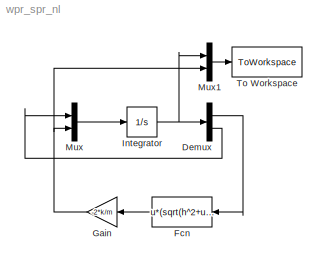
MODEL wpr_spr_nl
KIND model
BLOCK [Demux] Demux
  DisplayOption = bar
  Outputs = 2
  Ports = [1, 2]
  SID = 2
BLOCK [Fcn] Fcn
  Expr = u*(sqrt(h^2+u^2)-h)/(sqrt(h^2+u^2))
  SID = 5
BLOCK [Gain] Gain
  Gain = -2*k/m
  Multiplication = Matrix(K*u)
  OutDataTypeStr = Inherit: Inherit via internal rule
  ParamDataTypeStr = Inherit: Inherit via internal rule
  SID = 8
  SaturateOnIntegerOverflow = off
BLOCK [Integrator] Integrator
  InitialCondition = [0;v0]
  Ports = [1, 1]
  SID = 1
BLOCK [Mux] Mux
  DisplayOption = bar
  Inputs = 2
  Ports = [2, 1]
  SID = 3
BLOCK [Mux] Mux1
  DisplayOption = bar
  Inputs = 2
  Ports = [2, 1]
  SID = 10
BLOCK [ToWorkspace] To Workspace
  MaxDataPoints = inf
  Ports = [1]
  SID = 9
  SampleTime = -1
  VariableName = wpr_spr_nl
LINE Demux:1 -> Fcn:1
LINE Demux:2 -> Mux:1
LINE Fcn:1 -> Gain:1
NET Gain:1 -> Mux1:2, Mux:2
NET Integrator:1 -> Demux:1, Mux1:1
LINE Mux1:1 -> To Workspace:1
LINE Mux:1 -> Integrator:1
note: NET lines group one-source signal fan-out (src -> all destinations, sorted); 1:1 wires keep LINE
